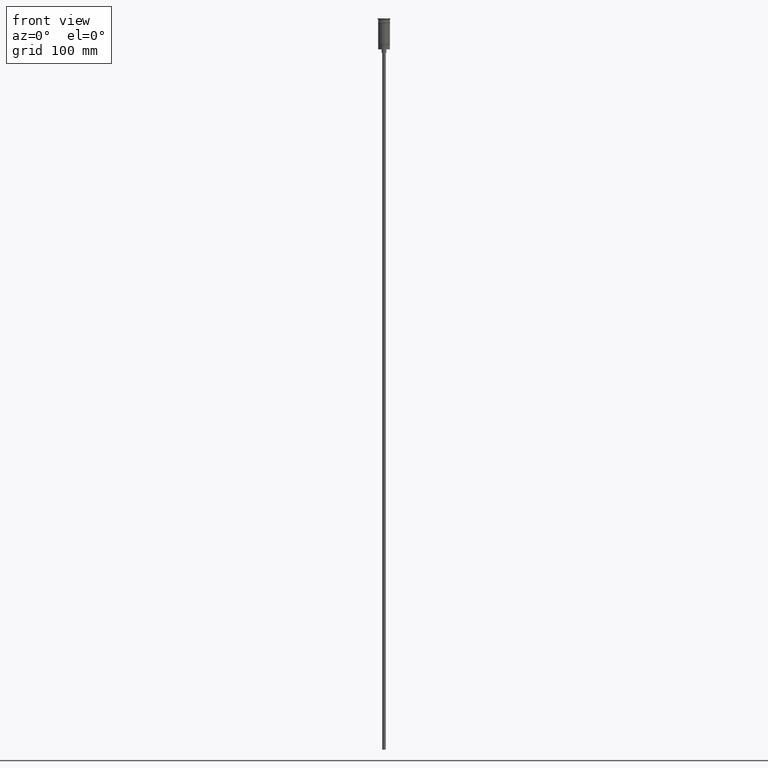
[diagram: clean part render]
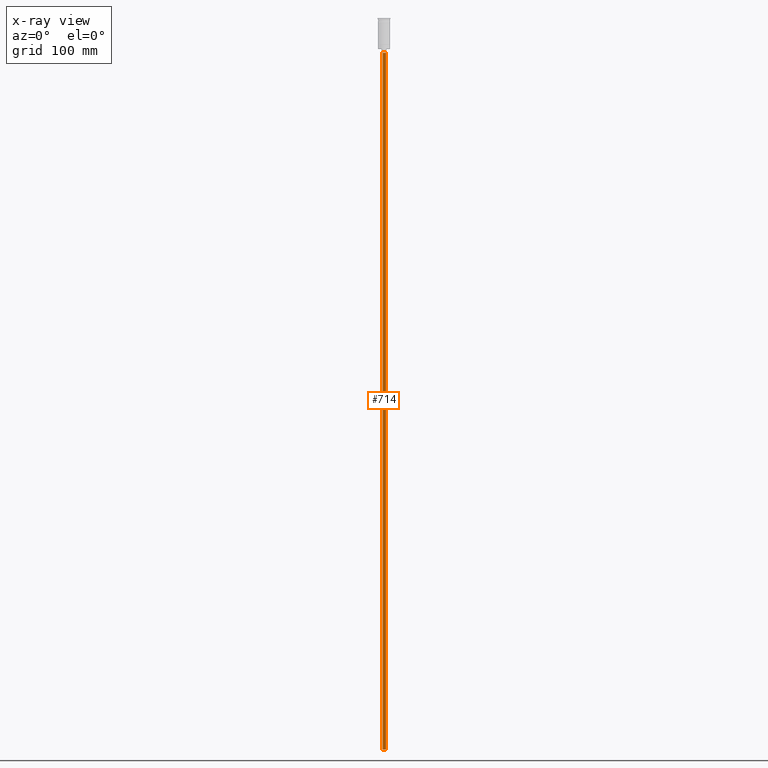
[diagram: x-ray — body ghosted, one internal face saturated and labeled with its STEP entity id]
A machine part, front view, then the same camera in x-ray: the body is ghosted and one INTERNAL B-rep face — a face not visible from any outside direction — is saturated and labeled: STEP entity #714.
In plain terms, the highlighted cylindrical surface (edge-blend (fillet) strip) has radius 1.5 mm, axis along (-0, -0, 1).
Its self-contained STEP definition (entity closure, byte-faithful):
#24 = DIRECTION ( 'NONE',  ( -0.000000000000000000, -0.000000000000000000, 1.000000000000000000 ) ) ;
#38 = CARTESIAN_POINT ( 'NONE',  ( -1.500000000000000222, 1.836970198721030181E-16, -29.50000000000000000 ) ) ;
#91 = ORIENTED_EDGE ( 'NONE', *, *, #658, .F. ) ;
#165 = AXIS2_PLACEMENT_3D ( 'NONE', #191, #405, #886 ) ;
#191 = CARTESIAN_POINT ( 'NONE',  ( 0.000000000000000000, 0.000000000000000000, -29.50000000000000000 ) ) ;
#223 = VERTEX_POINT ( 'NONE', #930 ) ;
#273 = LINE ( 'NONE', #522, #1552 ) ;
#313 = DIRECTION ( 'NONE',  ( 0.000000000000000000, 0.000000000000000000, -1.000000000000000000 ) ) ;
#353 = CARTESIAN_POINT ( 'NONE',  ( 0.000000000000000000, 0.000000000000000000, -626.5000000000000000 ) ) ;
#405 = DIRECTION ( 'NONE',  ( 0.000000000000000000, 0.000000000000000000, -1.000000000000000000 ) ) ;
#417 = EDGE_CURVE ( 'NONE', #701, #1491, #1143, .T. ) ;
#456 = DIRECTION ( 'NONE',  ( 1.000000000000000000, 0.000000000000000000, 0.000000000000000000 ) ) ;
#463 = FACE_OUTER_BOUND ( 'NONE', #603, .T. ) ;
#475 = AXIS2_PLACEMENT_3D ( 'NONE', #353, #1558, #456 ) ;
#522 = CARTESIAN_POINT ( 'NONE',  ( 1.500000000000000222, 0.000000000000000000, -626.5000000000000000 ) ) ;
#597 = VERTEX_POINT ( 'NONE', #1293 ) ;
#603 = EDGE_LOOP ( 'NONE', ( #91, #1570, #943, #838 ) ) ;
#658 = EDGE_CURVE ( 'NONE', #701, #597, #1111, .T. ) ;
#701 = VERTEX_POINT ( 'NONE', #1334 ) ;
#714 = ADVANCED_FACE ( 'NONE', ( #463 ), #821, .T. ) ;
#747 = DIRECTION ( 'NONE',  ( -0.000000000000000000, -0.000000000000000000, 1.000000000000000000 ) ) ;
#750 = AXIS2_PLACEMENT_3D ( 'NONE', #1408, #313, #1592 ) ;
#821 = CYLINDRICAL_SURFACE ( 'NONE', #475, 1.500000000000000222 ) ;
#838 = ORIENTED_EDGE ( 'NONE', *, *, #896, .F. ) ;
#886 = DIRECTION ( 'NONE',  ( -1.000000000000000000, 0.000000000000000000, 0.000000000000000000 ) ) ;
#896 = EDGE_CURVE ( 'NONE', #597, #223, #273, .T. ) ;
#930 = CARTESIAN_POINT ( 'NONE',  ( 1.500000000000000222, 0.000000000000000000, -29.50000000000000000 ) ) ;
#943 = ORIENTED_EDGE ( 'NONE', *, *, #1379, .T. ) ;
#1036 = CIRCLE ( 'NONE', #165, 1.500000000000000222 ) ;
#1111 = CIRCLE ( 'NONE', #750, 1.500000000000000222 ) ;
#1125 = CARTESIAN_POINT ( 'NONE',  ( -1.500000000000000222, 1.836970198721030181E-16, -626.5000000000000000 ) ) ;
#1143 = LINE ( 'NONE', #1125, #1368 ) ;
#1293 = CARTESIAN_POINT ( 'NONE',  ( 1.500000000000000222, 0.000000000000000000, -626.5000000000000000 ) ) ;
#1334 = CARTESIAN_POINT ( 'NONE',  ( -1.500000000000000222, 1.836970198721030181E-16, -626.5000000000000000 ) ) ;
#1368 = VECTOR ( 'NONE', #747, 1000.000000000000000 ) ;
#1379 = EDGE_CURVE ( 'NONE', #1491, #223, #1036, .T. ) ;
#1408 = CARTESIAN_POINT ( 'NONE',  ( 0.000000000000000000, 0.000000000000000000, -626.5000000000000000 ) ) ;
#1491 = VERTEX_POINT ( 'NONE', #38 ) ;
#1552 = VECTOR ( 'NONE', #24, 1000.000000000000000 ) ;
#1558 = DIRECTION ( 'NONE',  ( -0.000000000000000000, -0.000000000000000000, 1.000000000000000000 ) ) ;
#1570 = ORIENTED_EDGE ( 'NONE', *, *, #417, .T. ) ;
#1592 = DIRECTION ( 'NONE',  ( -1.000000000000000000, 0.000000000000000000, 0.000000000000000000 ) ) ;